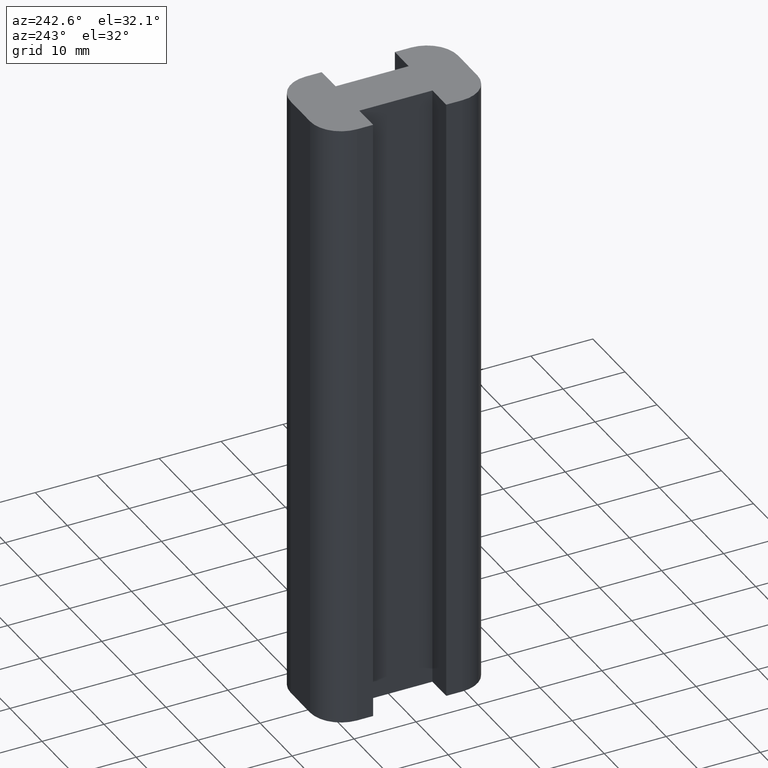
[diagram: clean part render]
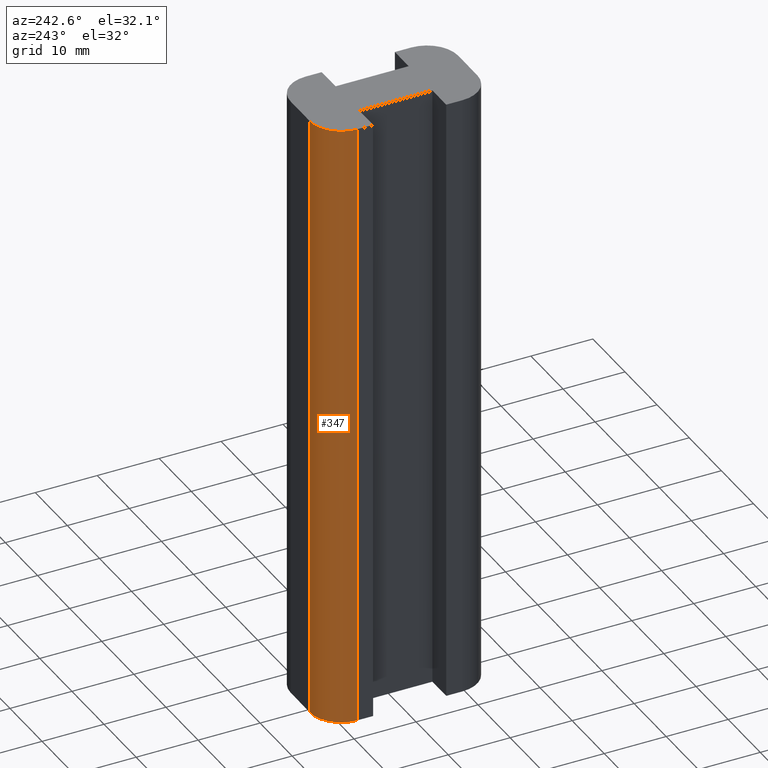
[diagram: same view with one face highlighted and labeled with its STEP entity id]
A machine part, auxiliary view. The second image highlights one B-rep face of the part: STEP entity #347.
In plain terms, the highlighted cylindrical surface (edge-blend (fillet) strip) has radius 5 mm, axis along (0, 0, 1).
Its self-contained STEP definition (entity closure, byte-faithful):
#43=FACE_OUTER_BOUND('',#61,.T.);
#61=EDGE_LOOP('',(#289,#290,#291,#292));
#101=LINE('',#560,#141);
#102=LINE('',#566,#142);
#141=VECTOR('',#457,100.);
#142=VECTOR('',#464,100.);
#151=CIRCLE('',#374,5.);
#152=CIRCLE('',#375,5.);
#181=VERTEX_POINT('',#556);
#182=VERTEX_POINT('',#558);
#183=VERTEX_POINT('',#562);
#184=VERTEX_POINT('',#564);
#227=EDGE_CURVE('',#181,#182,#101,.T.);
#228=EDGE_CURVE('',#181,#183,#151,.T.);
#229=EDGE_CURVE('',#184,#182,#152,.T.);
#230=EDGE_CURVE('',#183,#184,#102,.T.);
#289=ORIENTED_EDGE('',*,*,#228,.F.);
#290=ORIENTED_EDGE('',*,*,#227,.T.);
#291=ORIENTED_EDGE('',*,*,#229,.F.);
#292=ORIENTED_EDGE('',*,*,#230,.F.);
#332=CYLINDRICAL_SURFACE('',#373,5.);
#347=ADVANCED_FACE('',(#43),#332,.T.);
#373=AXIS2_PLACEMENT_3D('',#561,#458,#459);
#374=AXIS2_PLACEMENT_3D('',#563,#460,#461);
#375=AXIS2_PLACEMENT_3D('',#565,#462,#463);
#457=DIRECTION('',(0.,0.,1.));
#458=DIRECTION('center_axis',(0.,0.,1.));
#459=DIRECTION('ref_axis',(0.,-1.,0.));
#460=DIRECTION('center_axis',(0.,0.,-1.));
#461=DIRECTION('ref_axis',(0.,-1.,0.));
#462=DIRECTION('center_axis',(0.,0.,1.));
#463=DIRECTION('ref_axis',(0.,-1.,0.));
#464=DIRECTION('',(0.,0.,1.));
#556=CARTESIAN_POINT('',(-8.,8.5,0.));
#558=CARTESIAN_POINT('',(-8.,8.5,100.));
#560=CARTESIAN_POINT('',(-8.,8.5,0.));
#561=CARTESIAN_POINT('Origin',(-3.,8.5,0.));
#562=CARTESIAN_POINT('',(-3.,13.5,0.));
#563=CARTESIAN_POINT('Origin',(-3.,8.5,0.));
#564=CARTESIAN_POINT('',(-3.,13.5,100.));
#565=CARTESIAN_POINT('Origin',(-3.,8.5,100.));
#566=CARTESIAN_POINT('',(-3.,13.5,0.));